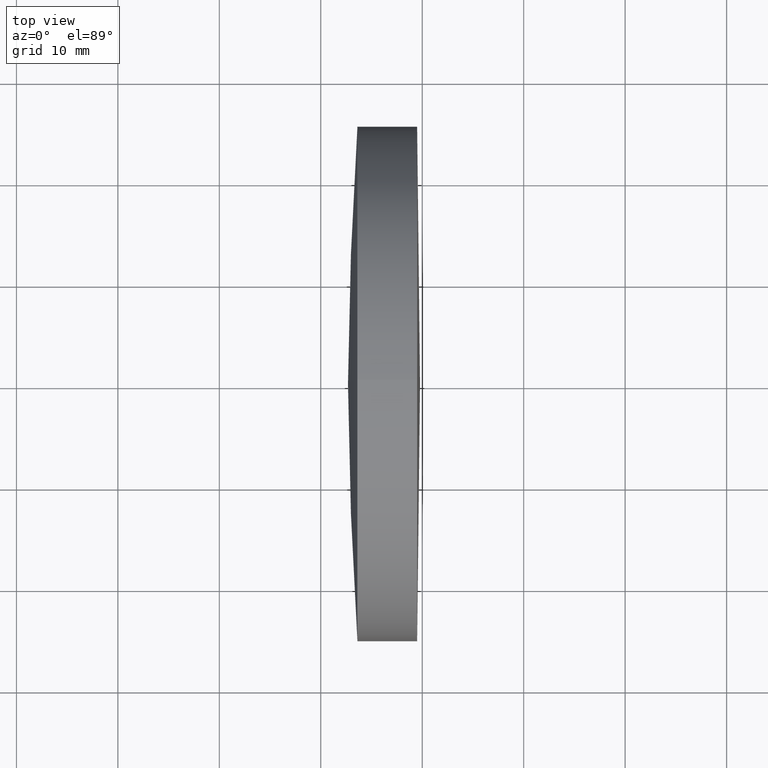
[diagram: clean part render]
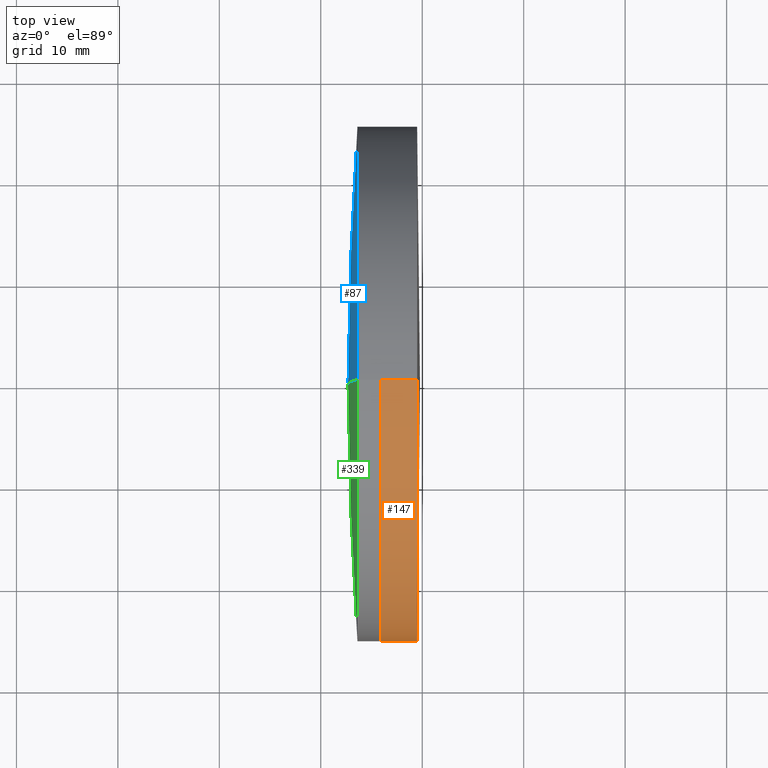
[diagram: same view with three faces highlighted in distinct colors, each labeled with its STEP entity id]
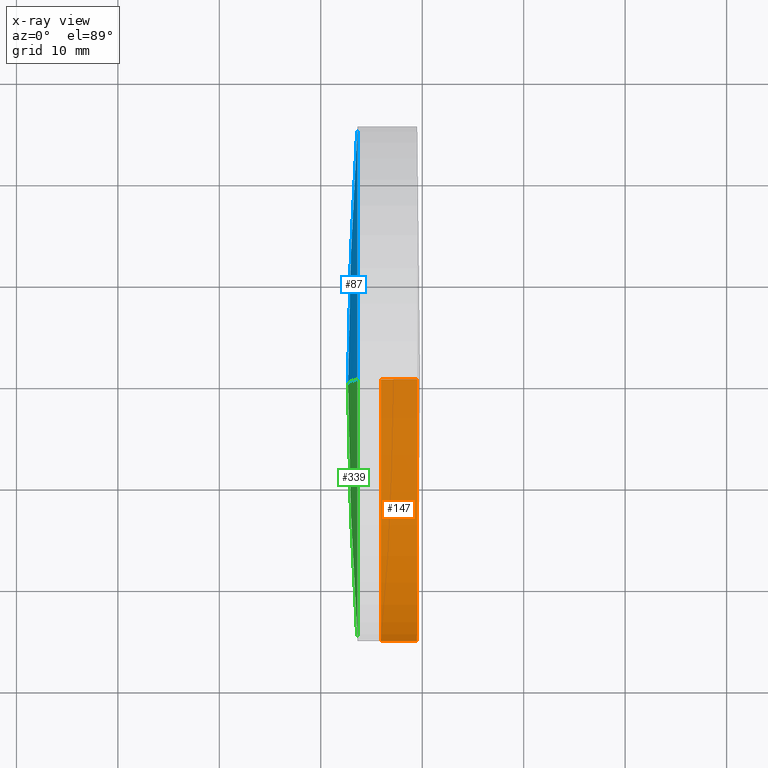
[diagram: x-ray of the same camera — body ghosted, the three highlighted faces saturated]
A machine part, top view with three faces highlighted in distinct colors.
The next image is the same camera in x-ray (body ghosted, the three faces saturated) — at least one of them is partly hidden behind the body in this view.
Their STEP definitions:

[orange] entity #147 — the highlighted cylindrical surface (partial cylindrical patch) has radius 25.4 mm, axis along (-1, -0, -0).
#6 = EDGE_CURVE ( 'NONE', #163, #120, #19, .T. ) ;
#19 = CIRCLE ( 'NONE', #253, 25.40000000000006300 ) ;
#31 = DIRECTION ( 'NONE',  ( 0.0000000000000000000, 0.0000000000000000000, 1.000000000000000000 ) ) ;
#41 = DIRECTION ( 'NONE',  ( 0.0000000000000000000, 0.0000000000000000000, 1.000000000000000000 ) ) ;
#44 = ORIENTED_EDGE ( 'NONE', *, *, #141, .T. ) ;
#53 = ORIENTED_EDGE ( 'NONE', *, *, #317, .F. ) ;
#60 = EDGE_LOOP ( 'NONE', ( #53, #76, #44, #196 ) ) ;
#64 = DIRECTION ( 'NONE',  ( 0.0000000000000000000, 0.0000000000000000000, 1.000000000000000000 ) ) ;
#72 = VECTOR ( 'NONE', #331, 1000.000000000000000 ) ;
#73 = CARTESIAN_POINT ( 'NONE',  ( -0.5519199926577972300, 3.110602869834265800E-015, -25.39999999999991000 ) ) ;
#75 = VERTEX_POINT ( 'NONE', #302 ) ;
#76 = ORIENTED_EDGE ( 'NONE', *, *, #179, .T. ) ;
#79 = VERTEX_POINT ( 'NONE', #218 ) ;
#82 = CARTESIAN_POINT ( 'NONE',  ( -0.5519199926577972300, 0.0000000000000000000, 25.39999999999991000 ) ) ;
#109 = DIRECTION ( 'NONE',  ( -1.000000000000000000, -0.0000000000000000000, -0.0000000000000000000 ) ) ;
#114 = CARTESIAN_POINT ( 'NONE',  ( -0.5519199926577972300, 0.0000000000000000000, 0.0000000000000000000 ) ) ;
#120 = VERTEX_POINT ( 'NONE', #221 ) ;
#134 = AXIS2_PLACEMENT_3D ( 'NONE', #114, #306, #41 ) ;
#138 = AXIS2_PLACEMENT_3D ( 'NONE', #298, #109, #31 ) ;
#141 = EDGE_CURVE ( 'NONE', #75, #120, #225, .T. ) ;
#143 = DIRECTION ( 'NONE',  ( -1.000000000000000000, -0.0000000000000000000, -0.0000000000000000000 ) ) ;
#147 = ADVANCED_FACE ( 'NONE', ( #237 ), #318, .T. ) ;
#156 = DIRECTION ( 'NONE',  ( -1.000000000000000000, -0.0000000000000000000, -0.0000000000000000000 ) ) ;
#163 = VERTEX_POINT ( 'NONE', #245 ) ;
#166 = CARTESIAN_POINT ( 'NONE',  ( 715.9340020172002100, 0.0000000000000000000, 0.0000000000000000000 ) ) ;
#179 = EDGE_CURVE ( 'NONE', #79, #75, #281, .T. ) ;
#196 = ORIENTED_EDGE ( 'NONE', *, *, #6, .F. ) ;
#209 = LINE ( 'NONE', #73, #72 ) ;
#215 = VECTOR ( 'NONE', #156, 1000.000000000000000 ) ;
#218 = CARTESIAN_POINT ( 'NONE',  ( 719.4956594297797200, 3.110602869834256700E-015, -25.39999999999975700 ) ) ;
#221 = CARTESIAN_POINT ( 'NONE',  ( 715.9340020172002100, 0.0000000000000000000, 25.39999999999994500 ) ) ;
#225 = LINE ( 'NONE', #82, #215 ) ;
#237 = FACE_OUTER_BOUND ( 'NONE', #60, .T. ) ;
#245 = CARTESIAN_POINT ( 'NONE',  ( 715.9340020172002100, 3.110602869834270600E-015, -25.39999999999995200 ) ) ;
#253 = AXIS2_PLACEMENT_3D ( 'NONE', #166, #143, #64 ) ;
#281 = CIRCLE ( 'NONE', #138, 25.39999999999975700 ) ;
#298 = CARTESIAN_POINT ( 'NONE',  ( 719.4956594297797200, 0.0000000000000000000, 0.0000000000000000000 ) ) ;
#302 = CARTESIAN_POINT ( 'NONE',  ( 719.4956594297797200, 0.0000000000000000000, 25.39999999999975700 ) ) ;
#306 = DIRECTION ( 'NONE',  ( -1.000000000000000000, -0.0000000000000000000, -0.0000000000000000000 ) ) ;
#317 = EDGE_CURVE ( 'NONE', #79, #163, #209, .T. ) ;
#318 = CYLINDRICAL_SURFACE ( 'NONE', #134, 25.39999999999991000 ) ;
#331 = DIRECTION ( 'NONE',  ( -1.000000000000000000, -0.0000000000000000000, -0.0000000000000000000 ) ) ;

[blue] entity #87 — the highlighted spherical surface has radius 346.7 mm.
#15 = DIRECTION ( 'NONE',  ( 0.0000000000000000000, 0.0000000000000000000, 1.000000000000000000 ) ) ;
#21 = DIRECTION ( 'NONE',  ( 0.0000000000000000000, 0.0000000000000000000, -1.000000000000000000 ) ) ;
#22 = AXIS2_PLACEMENT_3D ( 'NONE', #115, #271, #15 ) ;
#28 = SPHERICAL_SURFACE ( 'NONE', #242, 346.7000000000001000 ) ;
#56 = EDGE_CURVE ( 'NONE', #59, #197, #265, .T. ) ;
#59 = VERTEX_POINT ( 'NONE', #345 ) ;
#65 = EDGE_CURVE ( 'NONE', #297, #59, #336, .T. ) ;
#87 = ADVANCED_FACE ( 'NONE', ( #274 ), #28, .T. ) ;
#91 = CARTESIAN_POINT ( 'NONE',  ( 1059.380559274323100, 0.0000000000000000000, -5.039959363390816900E-015 ) ) ;
#106 = ORIENTED_EDGE ( 'NONE', *, *, #56, .T. ) ;
#107 = AXIS2_PLACEMENT_3D ( 'NONE', #127, #347, #327 ) ;
#110 = AXIS2_PLACEMENT_3D ( 'NONE', #341, #214, #21 ) ;
#115 = CARTESIAN_POINT ( 'NONE',  ( 713.6122408875742200, 0.0000000000000000000, 0.0000000000000000000 ) ) ;
#127 = CARTESIAN_POINT ( 'NONE',  ( 1059.380559274323100, 0.0000000000000000000, -5.039959363390816900E-015 ) ) ;
#157 = ORIENTED_EDGE ( 'NONE', *, *, #230, .F. ) ;
#197 = VERTEX_POINT ( 'NONE', #290 ) ;
#214 = DIRECTION ( 'NONE',  ( 0.0000000000000000000, -1.000000000000000000, 0.0000000000000000000 ) ) ;
#222 = EDGE_LOOP ( 'NONE', ( #280, #106, #157 ) ) ;
#230 = EDGE_CURVE ( 'NONE', #297, #197, #316, .T. ) ;
#242 = AXIS2_PLACEMENT_3D ( 'NONE', #91, #260, #283 ) ;
#260 = DIRECTION ( 'NONE',  ( 0.0000000000000000000, 1.000000000000000000, 0.0000000000000000000 ) ) ;
#265 = CIRCLE ( 'NONE', #107, 346.7000000000001000 ) ;
#271 = DIRECTION ( 'NONE',  ( -1.000000000000000000, -0.0000000000000000000, -0.0000000000000000000 ) ) ;
#274 = FACE_OUTER_BOUND ( 'NONE', #222, .T. ) ;
#280 = ORIENTED_EDGE ( 'NONE', *, *, #65, .T. ) ;
#283 = DIRECTION ( 'NONE',  ( 0.0000000000000000000, 0.0000000000000000000, 1.000000000000000000 ) ) ;
#290 = CARTESIAN_POINT ( 'NONE',  ( 712.6805592743229500, 0.0000000000000000000, 1.618929289982855800E-014 ) ) ;
#297 = VERTEX_POINT ( 'NONE', #305 ) ;
#305 = CARTESIAN_POINT ( 'NONE',  ( 713.6122408875742200, 0.0000000000000000000, 25.39999999999991300 ) ) ;
#316 = CIRCLE ( 'NONE', #110, 346.7000000000001000 ) ;
#327 = DIRECTION ( 'NONE',  ( 0.0000000000000000000, -1.224646799147353500E-016, 1.000000000000000000 ) ) ;
#336 = CIRCLE ( 'NONE', #22, 25.39999999999999100 ) ;
#341 = CARTESIAN_POINT ( 'NONE',  ( 1059.380559274323100, 0.0000000000000000000, -5.039959363390816900E-015 ) ) ;
#345 = CARTESIAN_POINT ( 'NONE',  ( 713.6122408875742200, 3.110602869834266600E-015, -25.39999999999991700 ) ) ;
#347 = DIRECTION ( 'NONE',  ( -0.0000000000000000000, 1.000000000000000000, 1.224646799147353200E-016 ) ) ;

[green] entity #339 — the highlighted spherical surface has radius 346.7 mm.
#21 = DIRECTION ( 'NONE',  ( 0.0000000000000000000, 0.0000000000000000000, -1.000000000000000000 ) ) ;
#39 = SPHERICAL_SURFACE ( 'NONE', #289, 346.7000000000001000 ) ;
#56 = EDGE_CURVE ( 'NONE', #59, #197, #265, .T. ) ;
#59 = VERTEX_POINT ( 'NONE', #345 ) ;
#98 = CARTESIAN_POINT ( 'NONE',  ( 1059.380559274323100, 0.0000000000000000000, -5.039959363390816900E-015 ) ) ;
#107 = AXIS2_PLACEMENT_3D ( 'NONE', #127, #347, #327 ) ;
#110 = AXIS2_PLACEMENT_3D ( 'NONE', #341, #214, #21 ) ;
#122 = CARTESIAN_POINT ( 'NONE',  ( 713.6122408875742200, 0.0000000000000000000, 0.0000000000000000000 ) ) ;
#127 = CARTESIAN_POINT ( 'NONE',  ( 1059.380559274323100, 0.0000000000000000000, -5.039959363390816900E-015 ) ) ;
#140 = EDGE_LOOP ( 'NONE', ( #150, #236, #234 ) ) ;
#144 = AXIS2_PLACEMENT_3D ( 'NONE', #122, #183, #160 ) ;
#150 = ORIENTED_EDGE ( 'NONE', *, *, #56, .F. ) ;
#160 = DIRECTION ( 'NONE',  ( 0.0000000000000000000, 0.0000000000000000000, 1.000000000000000000 ) ) ;
#161 = DIRECTION ( 'NONE',  ( 0.0000000000000000000, 1.000000000000000000, 0.0000000000000000000 ) ) ;
#183 = DIRECTION ( 'NONE',  ( -1.000000000000000000, -0.0000000000000000000, -0.0000000000000000000 ) ) ;
#189 = DIRECTION ( 'NONE',  ( 0.0000000000000000000, 0.0000000000000000000, 1.000000000000000000 ) ) ;
#197 = VERTEX_POINT ( 'NONE', #290 ) ;
#204 = FACE_OUTER_BOUND ( 'NONE', #140, .T. ) ;
#214 = DIRECTION ( 'NONE',  ( 0.0000000000000000000, -1.000000000000000000, 0.0000000000000000000 ) ) ;
#230 = EDGE_CURVE ( 'NONE', #297, #197, #316, .T. ) ;
#234 = ORIENTED_EDGE ( 'NONE', *, *, #230, .T. ) ;
#236 = ORIENTED_EDGE ( 'NONE', *, *, #296, .T. ) ;
#238 = CIRCLE ( 'NONE', #144, 25.39999999999999100 ) ;
#265 = CIRCLE ( 'NONE', #107, 346.7000000000001000 ) ;
#289 = AXIS2_PLACEMENT_3D ( 'NONE', #98, #161, #189 ) ;
#290 = CARTESIAN_POINT ( 'NONE',  ( 712.6805592743229500, 0.0000000000000000000, 1.618929289982855800E-014 ) ) ;
#296 = EDGE_CURVE ( 'NONE', #59, #297, #238, .T. ) ;
#297 = VERTEX_POINT ( 'NONE', #305 ) ;
#305 = CARTESIAN_POINT ( 'NONE',  ( 713.6122408875742200, 0.0000000000000000000, 25.39999999999991300 ) ) ;
#316 = CIRCLE ( 'NONE', #110, 346.7000000000001000 ) ;
#327 = DIRECTION ( 'NONE',  ( 0.0000000000000000000, -1.224646799147353500E-016, 1.000000000000000000 ) ) ;
#339 = ADVANCED_FACE ( 'NONE', ( #204 ), #39, .T. ) ;
#341 = CARTESIAN_POINT ( 'NONE',  ( 1059.380559274323100, 0.0000000000000000000, -5.039959363390816900E-015 ) ) ;
#345 = CARTESIAN_POINT ( 'NONE',  ( 713.6122408875742200, 3.110602869834266600E-015, -25.39999999999991700 ) ) ;
#347 = DIRECTION ( 'NONE',  ( -0.0000000000000000000, 1.000000000000000000, 1.224646799147353200E-016 ) ) ;